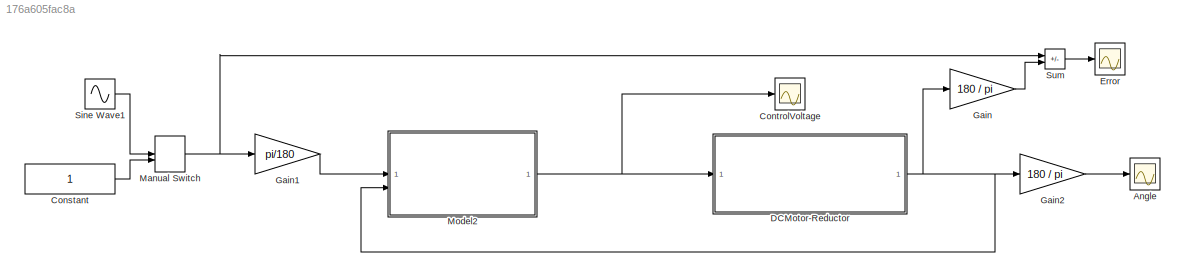
MODEL slx_176a605fac8a
KIND model
CONFIG AbsTol = auto
CONFIG EnableMultiTasking = off
CONFIG FixedStep = auto
CONFIG MaxStep = 0.005
CONFIG MinStep = auto
CONFIG RelTol = 1e-3
CONFIG SampleTimeConstraint = Unconstrained
CONFIG SolverName = ode23t
CONFIG StartTime = 0.0
CONFIG StopTime = 100
BLOCK [Scope] Angle
  Floating = off
  NumInputPorts = 1
  ScopeSpecificationString = Simulink.scopes.TimeScopeBlockCfg('CurrentConfiguration', extmgr.ConfigurationSet(extmgr.Configuration('Core','General UI',true),extmgr.Configuration('Core','Source UI',true),extmgr.Configuration('Sources','WiredSimulink',true,'DataLoggingVariableName','ScopeData1'),extmgr.Configuration('Visuals','Time Domain',true,'SerializedDisplays',{struct('MinYLimReal','-175.98618','MaxYLimReal','176.0153','Y...<+1403ch>
BLOCK [Constant] Constant
BLOCK [Scope] ControlVoltage
  Floating = off
  NumInputPorts = 1
  ScopeSpecificationString = Simulink.scopes.TimeScopeBlockCfg('CurrentConfiguration', extmgr.ConfigurationSet(extmgr.Configuration('Core','General UI',true),extmgr.Configuration('Core','Source UI',true),extmgr.Configuration('Sources','WiredSimulink',true,'DataLoggingVariableName','ScopeData2'),extmgr.Configuration('Visuals','Time Domain',true,'SerializedDisplays',{struct('MinYLimReal','-0.37163','MaxYLimReal','-0.00589','YLa...<+1476ch>
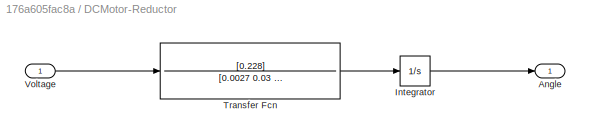
BLOCK [SubSystem] DCMotor-Reductor
BLOCK [Outport] DCMotor-Reductor/Angle
BLOCK [Integrator] DCMotor-Reductor/Integrator
BLOCK [TransferFcn] DCMotor-Reductor/Transfer Fcn
  Denominator = [0.0027 0.03 1]
  Numerator = [0.228]
BLOCK [Inport] DCMotor-Reductor/Voltage
BLOCK [Scope] Error
  Floating = off
  NumInputPorts = 1
  ScopeSpecificationString = Simulink.scopes.TimeScopeBlockCfg('CurrentConfiguration', extmgr.ConfigurationSet(extmgr.Configuration('Core','General UI',true,'FigureColor',[1 1 1]),extmgr.Configuration('Core','Source UI',true),extmgr.Configuration('Sources','WiredSimulink',true),extmgr.Configuration('Visuals','Time Domain',true,'SerializedDisplays',{struct('MinYLimReal','-1.6491','MaxYLimReal','6.38117','YLabelReal','','MinYLi...<+1543ch>
BLOCK [Gain] Gain
  Gain = 180 / pi
BLOCK [Gain] Gain1
  Gain = pi/180
BLOCK [Gain] Gain2
  Gain = 180 / pi
BLOCK [ManualSwitch] Manual Switch
BLOCK [ModelReference] Model2
  ModelNameDialog = Regulator23a.slx
  ModelReferenceVersion = 1.0
BLOCK [Sin] Sine Wave1
  Amplitude = 140
  Frequency = 0.63
  SampleTime = 0
BLOCK [Sum] Sum
  IconShape = rectangular
  Inputs = +-
LINE Constant:1 -> Manual Switch:2
LINE DCMotor-Reductor/Integrator:1 -> DCMotor-Reductor/Angle:1
LINE DCMotor-Reductor/Transfer Fcn:1 -> DCMotor-Reductor/Integrator:1
LINE DCMotor-Reductor/Voltage:1 -> DCMotor-Reductor/Transfer Fcn:1
NET DCMotor-Reductor:1 -> Gain2:1, Gain:1, Model2:2
LINE Gain1:1 -> Model2:1
LINE Gain2:1 -> Angle:1
LINE Gain:1 -> Sum:2
NET Manual Switch:1 -> Gain1:1, Sum:1
NET Model2:1 -> ControlVoltage:1, DCMotor-Reductor:1
LINE Sine Wave1:1 -> Manual Switch:1
LINE Sum:1 -> Error:1
note: NET lines group one-source signal fan-out (src -> all destinations, sorted); 1:1 wires keep LINE
